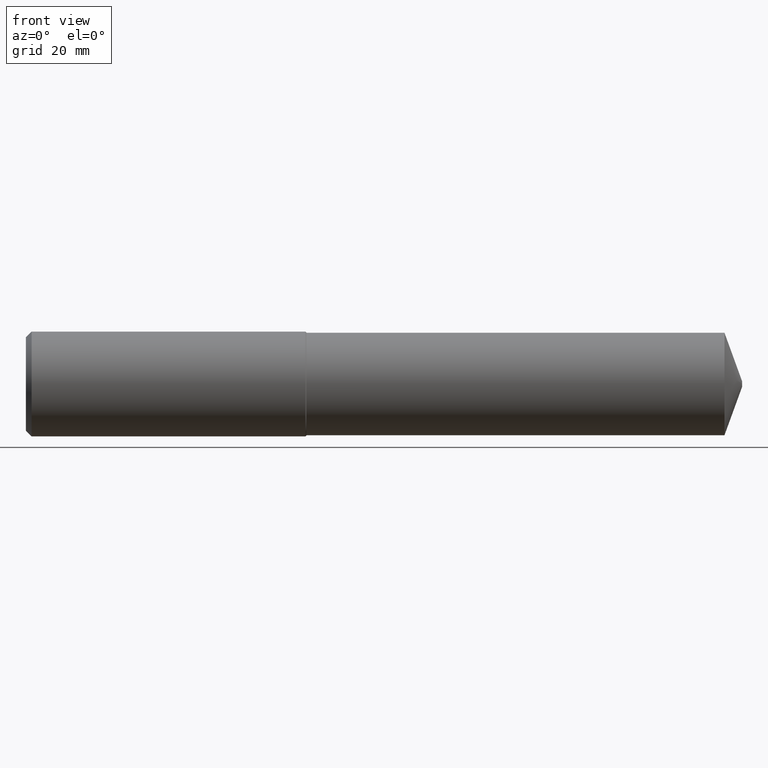
[diagram: clean part render]
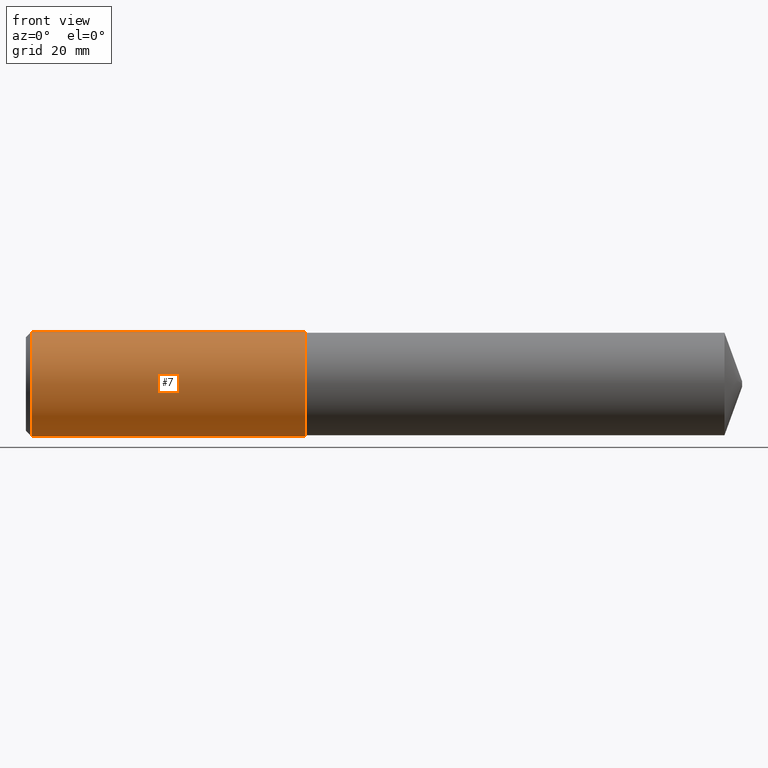
[diagram: same view with one face highlighted and labeled with its STEP entity id]
A machine part, front view. The second image highlights one B-rep face of the part: STEP entity #7.
In plain terms, the highlighted cylindrical surface (partial cylindrical patch) has radius 9 mm, axis along (1, -0, -0).
Its self-contained STEP definition (entity closure, byte-faithful):
#7 = ADVANCED_FACE ( 'NONE', ( #358 ), #10, .T. ) ;
#10 = CYLINDRICAL_SURFACE ( 'NONE', #52, 0.3543307086614173596 ) ;
#22 = VERTEX_POINT ( 'NONE', #150 ) ;
#27 = EDGE_CURVE ( 'NONE', #200, #22, #96, .T. ) ;
#47 = DIRECTION ( 'NONE',  ( 0.000000000000000000, 0.000000000000000000, -1.000000000000000000 ) ) ;
#52 = AXIS2_PLACEMENT_3D ( 'NONE', #239, #152, #188 ) ;
#62 = CIRCLE ( 'NONE', #135, 0.3543307086614172485 ) ;
#75 = ORIENTED_EDGE ( 'NONE', *, *, #224, .F. ) ;
#78 = CARTESIAN_POINT ( 'NONE',  ( 1.889763779527559251, 0.000000000000000000, 0.000000000000000000 ) ) ;
#96 = LINE ( 'NONE', #263, #344 ) ;
#99 = DIRECTION ( 'NONE',  ( 1.000000000000000000, -0.000000000000000000, -0.000000000000000000 ) ) ;
#104 = ORIENTED_EDGE ( 'NONE', *, *, #27, .F. ) ;
#105 = CARTESIAN_POINT ( 'NONE',  ( -0.03808593750000075634, 0.000000000000000000, -0.3543307086614173596 ) ) ;
#110 = DIRECTION ( 'NONE',  ( 1.000000000000000000, -0.000000000000000000, -0.000000000000000000 ) ) ;
#127 = VECTOR ( 'NONE', #99, 39.37007874015748143 ) ;
#135 = AXIS2_PLACEMENT_3D ( 'NONE', #304, #218, #47 ) ;
#144 = VERTEX_POINT ( 'NONE', #321 ) ;
#150 = CARTESIAN_POINT ( 'NONE',  ( 1.889763779527559251, 0.000000000000000000, 0.3543307086614175261 ) ) ;
#152 = DIRECTION ( 'NONE',  ( 1.000000000000000000, -0.000000000000000000, -0.000000000000000000 ) ) ;
#154 = DIRECTION ( 'NONE',  ( 1.000000000000000000, -0.000000000000000000, -0.000000000000000000 ) ) ;
#165 = VERTEX_POINT ( 'NONE', #240 ) ;
#188 = DIRECTION ( 'NONE',  ( 0.000000000000000000, 0.000000000000000000, -1.000000000000000000 ) ) ;
#200 = VERTEX_POINT ( 'NONE', #253 ) ;
#218 = DIRECTION ( 'NONE',  ( 1.000000000000000000, -0.000000000000000000, -0.000000000000000000 ) ) ;
#224 = EDGE_CURVE ( 'NONE', #22, #165, #236, .T. ) ;
#236 = CIRCLE ( 'NONE', #295, 0.3543307086614175261 ) ;
#239 = CARTESIAN_POINT ( 'NONE',  ( -0.03808593750000075634, 0.000000000000000000, 0.000000000000000000 ) ) ;
#240 = CARTESIAN_POINT ( 'NONE',  ( 1.889763779527559251, 4.339299682018183145E-17, -0.3543307086614175261 ) ) ;
#248 = ORIENTED_EDGE ( 'NONE', *, *, #316, .T. ) ;
#253 = CARTESIAN_POINT ( 'NONE',  ( 0.03937007874015747977, 4.339299682018180063E-17, 0.3543307086614172485 ) ) ;
#263 = CARTESIAN_POINT ( 'NONE',  ( -0.03808593750000075634, 4.339299682018181296E-17, 0.3543307086614173596 ) ) ;
#283 = LINE ( 'NONE', #105, #127 ) ;
#295 = AXIS2_PLACEMENT_3D ( 'NONE', #78, #110, #306 ) ;
#304 = CARTESIAN_POINT ( 'NONE',  ( 0.03937007874015747977, 0.000000000000000000, 0.000000000000000000 ) ) ;
#306 = DIRECTION ( 'NONE',  ( 0.000000000000000000, 0.000000000000000000, -1.000000000000000000 ) ) ;
#316 = EDGE_CURVE ( 'NONE', #144, #165, #283, .T. ) ;
#321 = CARTESIAN_POINT ( 'NONE',  ( 0.03937007874015747977, 0.000000000000000000, -0.3543307086614172485 ) ) ;
#325 = EDGE_CURVE ( 'NONE', #200, #144, #62, .T. ) ;
#341 = ORIENTED_EDGE ( 'NONE', *, *, #325, .T. ) ;
#344 = VECTOR ( 'NONE', #154, 39.37007874015748143 ) ;
#358 = FACE_OUTER_BOUND ( 'NONE', #368, .T. ) ;
#368 = EDGE_LOOP ( 'NONE', ( #104, #341, #248, #75 ) ) ;